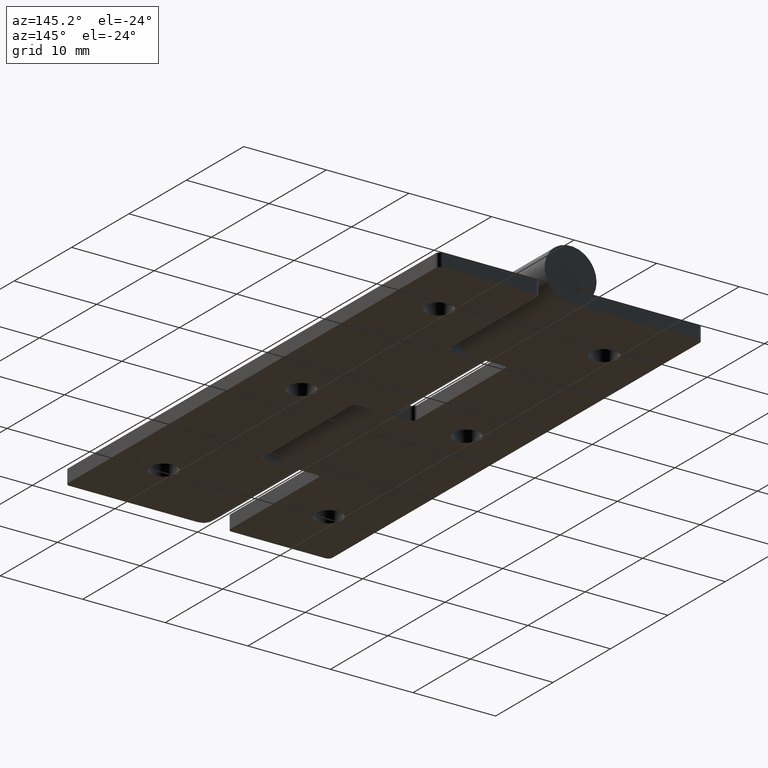
[diagram: clean part render]
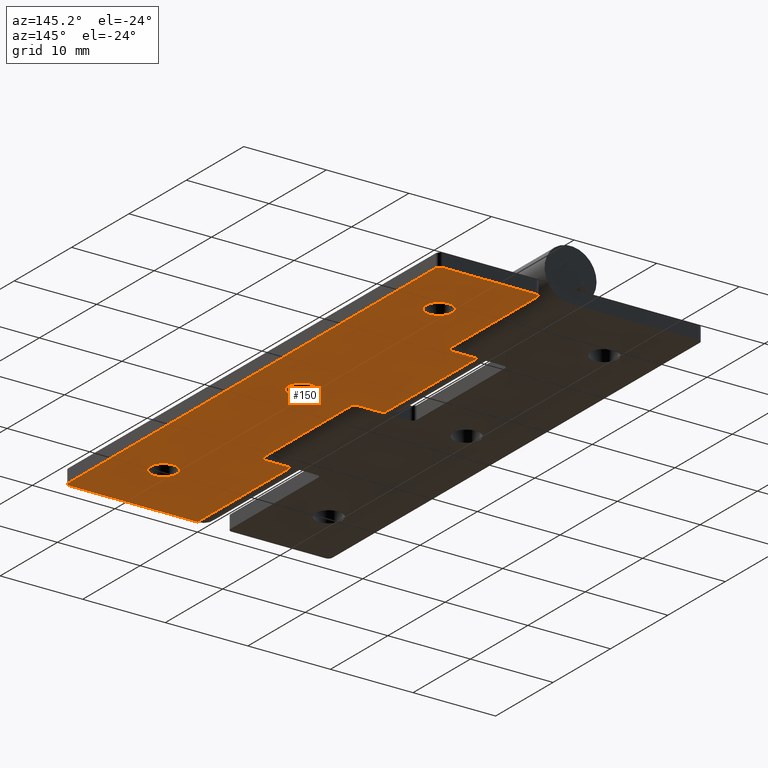
[diagram: same view with one face highlighted and labeled with its STEP entity id]
A machine part, auxiliary view. The second image highlights one B-rep face of the part: STEP entity #150.
In plain terms, the highlighted planar face has unit normal (-0, 0, 1).
Its self-contained STEP definition (entity closure, byte-faithful):
#150=ADVANCED_FACE('',(#220,#221,#222,#223),#219,.F.);
#219=PLANE('',#829);
#220=FACE_OUTER_BOUND('',#830,.T.);
#221=FACE_BOUND('',#831,.T.);
#222=FACE_BOUND('',#832,.T.);
#223=FACE_BOUND('',#833,.T.);
#826=CARTESIAN_POINT('',(-1.59999999998E+00,-6.50000000000E+00,-3.09999800001E+00));
#827=DIRECTION('',(-7.81140560233E-13,0.00000000000E+00,1.00000000000E+00));
#828=DIRECTION('',(1.00000000000E+00,0.00000000000E+00,7.81140560233E-13));
#829=AXIS2_PLACEMENT_3D('',#826,#827,#828);
#830=EDGE_LOOP('',(#1137,#1138,#1139,#1140,#1141,#1142,#1143,#1144,#1145,#1146,#1147,#1148,#1149,#1150,#1151,#1152));
#831=EDGE_LOOP('',(#1153,#1154));
#832=EDGE_LOOP('',(#1155,#1156));
#833=EDGE_LOOP('',(#1157,#1158));
#1137=ORIENTED_EDGE('',*,*,#1461,.F.);
#1138=ORIENTED_EDGE('',*,*,#1462,.T.);
#1139=ORIENTED_EDGE('',*,*,#1463,.F.);
#1140=ORIENTED_EDGE('',*,*,#1464,.F.);
#1141=ORIENTED_EDGE('',*,*,#1465,.T.);
#1142=ORIENTED_EDGE('',*,*,#1466,.F.);
#1143=ORIENTED_EDGE('',*,*,#1467,.T.);
#1144=ORIENTED_EDGE('',*,*,#1468,.F.);
#1145=ORIENTED_EDGE('',*,*,#1469,.F.);
#1146=ORIENTED_EDGE('',*,*,#1470,.F.);
#1147=ORIENTED_EDGE('',*,*,#1471,.T.);
#1148=ORIENTED_EDGE('',*,*,#1472,.F.);
#1149=ORIENTED_EDGE('',*,*,#1473,.F.);
#1150=ORIENTED_EDGE('',*,*,#1474,.F.);
#1151=ORIENTED_EDGE('',*,*,#1475,.F.);
#1152=ORIENTED_EDGE('',*,*,#1458,.T.);
#1153=ORIENTED_EDGE('',*,*,#1476,.T.);
#1154=ORIENTED_EDGE('',*,*,#1477,.T.);
#1155=ORIENTED_EDGE('',*,*,#1478,.T.);
#1156=ORIENTED_EDGE('',*,*,#1479,.T.);
#1157=ORIENTED_EDGE('',*,*,#1480,.T.);
#1158=ORIENTED_EDGE('',*,*,#1481,.T.);
#1458=EDGE_CURVE('',#1627,#1619,#1628,.T.);
#1461=EDGE_CURVE('',#1647,#1619,#1648,.T.);
#1462=EDGE_CURVE('',#1647,#1654,#1655,.T.);
#1463=EDGE_CURVE('',#1661,#1654,#1662,.T.);
#1464=EDGE_CURVE('',#1668,#1661,#1669,.T.);
#1465=EDGE_CURVE('',#1668,#1675,#1676,.T.);
#1466=EDGE_CURVE('',#1682,#1675,#1683,.T.);
#1467=EDGE_CURVE('',#1682,#1689,#1690,.T.);
#1468=EDGE_CURVE('',#1696,#1689,#1697,.T.);
#1469=EDGE_CURVE('',#1703,#1696,#1704,.T.);
#1470=EDGE_CURVE('',#1710,#1703,#1711,.T.);
#1471=EDGE_CURVE('',#1710,#1717,#1718,.T.);
#1472=EDGE_CURVE('',#1724,#1717,#1725,.T.);
#1473=EDGE_CURVE('',#1731,#1724,#1732,.T.);
#1474=EDGE_CURVE('',#1738,#1731,#1739,.T.);
#1475=EDGE_CURVE('',#1627,#1738,#1745,.T.);
#1476=EDGE_CURVE('',#1751,#1752,#1753,.T.);
#1477=EDGE_CURVE('',#1752,#1751,#1759,.T.);
#1478=EDGE_CURVE('',#1765,#1766,#1767,.T.);
#1479=EDGE_CURVE('',#1766,#1765,#1773,.T.);
#1480=EDGE_CURVE('',#1779,#1780,#1781,.T.);
#1481=EDGE_CURVE('',#1780,#1779,#1787,.T.);
#1619=VERTEX_POINT('',#2699);
#1627=VERTEX_POINT('',#2704);
#1628=LINE('',#2705,#2706);
#1647=VERTEX_POINT('',#2715);
#1648=CIRCLE('',#2719,5.00000000000E-01);
#1654=VERTEX_POINT('',#2720);
#1655=LINE('',#2721,#2722);
#1661=VERTEX_POINT('',#2724);
#1662=LINE('',#2725,#2726);
#1668=VERTEX_POINT('',#2728);
#1669=LINE('',#2729,#2730);
#1675=VERTEX_POINT('',#2732);
#1676=CIRCLE('',#2736,5.00000000000E-01);
#1682=VERTEX_POINT('',#2737);
#1683=LINE('',#2738,#2739);
#1689=VERTEX_POINT('',#2741);
#1690=CIRCLE('',#2745,5.00000000000E-01);
#1696=VERTEX_POINT('',#2746);
#1697=LINE('',#2747,#2748);
#1703=VERTEX_POINT('',#2750);
#1704=LINE('',#2751,#2752);
#1710=VERTEX_POINT('',#2754);
#1711=LINE('',#2755,#2756);
#1717=VERTEX_POINT('',#2758);
#1718=CIRCLE('',#2762,5.00000000000E-01);
#1724=VERTEX_POINT('',#2763);
#1725=LINE('',#2764,#2765);
#1731=VERTEX_POINT('',#2767);
#1732=CIRCLE('',#2771,5.00000000000E-01);
#1738=VERTEX_POINT('',#2772);
#1739=LINE('',#2773,#2774);
#1745=CIRCLE('',#2779,5.00000000000E-01);
#1751=VERTEX_POINT('',#2780);
#1752=VERTEX_POINT('',#2781);
#1753=CIRCLE('',#2785,1.60000000000E+00);
#1759=CIRCLE('',#2789,1.60000000000E+00);
#1765=VERTEX_POINT('',#2790);
#1766=VERTEX_POINT('',#2791);
#1767=CIRCLE('',#2795,1.60000000000E+00);
#1773=CIRCLE('',#2799,1.60000000000E+00);
#1779=VERTEX_POINT('',#2800);
#1780=VERTEX_POINT('',#2801);
#1781=CIRCLE('',#2805,1.60000000000E+00);
#1787=CIRCLE('',#2809,1.60000000000E+00);
#2699=CARTESIAN_POINT('',(1.59999999998E+01,5.00000000007E-01,-3.09999800001E+00));
#2704=CARTESIAN_POINT('',(1.59999999998E+01,6.45000000000E+01,-3.09999800001E+00));
#2705=CARTESIAN_POINT('',(1.59999999998E+01,6.45000000000E+01,-3.09999800000E+00));
#2706=VECTOR('',#2707,6.40000000000E+01);
#2707=DIRECTION('',(0.00000000000E+00,-1.00000000000E+00,0.00000000000E+00));
#2715=CARTESIAN_POINT('',(1.54999999998E+01,6.70752342558E-12,-3.09999800001E+00));
#2716=CARTESIAN_POINT('',(1.54999999998E+01,5.00000000007E-01,-3.09999800001E+00));
#2717=DIRECTION('',(0.00000000000E+00,0.00000000000E+00,1.00000000000E+00));
#2718=DIRECTION('',(1.00000000000E+00,-0.00000000000E+00,-0.00000000000E+00));
#2719=AXIS2_PLACEMENT_3D('',#2716,#2717,#2718);
#2720=CARTESIAN_POINT('',(2.46025422257E-12,0.00000000000E+00,-3.09999800001E+00));
#2721=CARTESIAN_POINT('',(1.54999999998E+01,0.00000000000E+00,-3.09999800000E+00));
#2722=VECTOR('',#2723,1.54999999998E+01);
#2723=DIRECTION('',(-1.00000000000E+00,0.00000000000E+00,-7.81138594678E-13));
#2724=CARTESIAN_POINT('',(0.00000000000E+00,1.62500000000E+01,-3.09999800001E+00));
#2725=CARTESIAN_POINT('',(2.46025422257E-12,1.62500000000E+01,-3.09999800001E+00));
#2726=VECTOR('',#2727,1.62500000000E+01);
#2727=DIRECTION('',(0.00000000000E+00,-1.00000000000E+00,0.00000000000E+00));
#2728=CARTESIAN_POINT('',(3.14999999980E+00,1.62500000000E+01,-3.09999800001E+00));
#2729=CARTESIAN_POINT('',(3.14999999980E+00,1.62500000000E+01,-3.09999800001E+00));
#2730=VECTOR('',#2731,3.14999999980E+00);
#2731=DIRECTION('',(-1.00000000000E+00,-7.75957781325E-13,0.00000000000E+00));
#2732=CARTESIAN_POINT('',(3.64999999980E+00,1.67500000000E+01,-3.09999800001E+00));
#2733=CARTESIAN_POINT('',(3.14999999980E+00,1.67500000000E+01,-3.09999800001E+00));
#2734=DIRECTION('',(0.00000000000E+00,0.00000000000E+00,1.00000000000E+00));
#2735=DIRECTION('',(1.00000000000E+00,-0.00000000000E+00,-0.00000000000E+00));
#2736=AXIS2_PLACEMENT_3D('',#2733,#2734,#2735);
#2737=CARTESIAN_POINT('',(3.64999999980E+00,3.20000000000E+01,-3.09999800001E+00));
#2738=CARTESIAN_POINT('',(3.64999999980E+00,3.20000000000E+01,-3.09999800001E+00));
#2739=VECTOR('',#2740,1.52500000000E+01);
#2740=DIRECTION('',(0.00000000000E+00,-1.00000000000E+00,0.00000000000E+00));
#2741=CARTESIAN_POINT('',(3.14999999980E+00,3.25000000000E+01,-3.09999800001E+00));
#2742=CARTESIAN_POINT('',(3.14999999980E+00,3.20000000000E+01,-3.09999800001E+00));
#2743=DIRECTION('',(0.00000000000E+00,0.00000000000E+00,1.00000000000E+00));
#2744=DIRECTION('',(1.00000000000E+00,-0.00000000000E+00,-0.00000000000E+00));
#2745=AXIS2_PLACEMENT_3D('',#2742,#2743,#2744);
#2746=CARTESIAN_POINT('',(0.00000000000E+00,3.25000000000E+01,-3.09999800001E+00));
#2747=CARTESIAN_POINT('',(0.00000000000E+00,3.25000000000E+01,-3.09999800001E+00));
#2748=VECTOR('',#2749,3.14999999980E+00);
#2749=DIRECTION('',(1.00000000000E+00,-1.29702245425E-12,0.00000000000E+00));
#2750=CARTESIAN_POINT('',(0.00000000000E+00,4.87500000000E+01,-3.09999800001E+00));
#2751=CARTESIAN_POINT('',(2.46025422257E-12,4.87500000000E+01,-3.09999800001E+00));
#2752=VECTOR('',#2753,1.62500000000E+01);
#2753=DIRECTION('',(0.00000000000E+00,-1.00000000000E+00,0.00000000000E+00));
#2754=CARTESIAN_POINT('',(3.14999999980E+00,4.87500000000E+01,-3.09999800001E+00));
#2755=CARTESIAN_POINT('',(3.14999999980E+00,4.87500000000E+01,-3.09999800001E+00));
#2756=VECTOR('',#2757,3.14999999980E+00);
#2757=DIRECTION('',(-1.00000000000E+00,-2.86021647302E-12,0.00000000000E+00));
#2758=CARTESIAN_POINT('',(3.64999999980E+00,4.92500000000E+01,-3.09999800001E+00));
#2759=CARTESIAN_POINT('',(3.14999999980E+00,4.92500000000E+01,-3.09999800001E+00));
#2760=DIRECTION('',(0.00000000000E+00,0.00000000000E+00,1.00000000000E+00));
#2761=DIRECTION('',(1.00000000000E+00,-0.00000000000E+00,-0.00000000000E+00));
#2762=AXIS2_PLACEMENT_3D('',#2759,#2760,#2761);
#2763=CARTESIAN_POINT('',(3.64999999980E+00,6.45000000000E+01,-3.09999800001E+00));
#2764=CARTESIAN_POINT('',(3.64999999980E+00,6.45000000000E+01,-3.09999800001E+00));
#2765=VECTOR('',#2766,1.52500000000E+01);
#2766=DIRECTION('',(0.00000000000E+00,-1.00000000000E+00,0.00000000000E+00));
#2767=CARTESIAN_POINT('',(4.14999999980E+00,6.50000000000E+01,-3.09999800001E+00));
#2768=CARTESIAN_POINT('',(4.14999999980E+00,6.45000000000E+01,-3.09999800001E+00));
#2769=DIRECTION('',(0.00000000000E+00,0.00000000000E+00,1.00000000000E+00));
#2770=DIRECTION('',(1.00000000000E+00,-0.00000000000E+00,-0.00000000000E+00));
#2771=AXIS2_PLACEMENT_3D('',#2768,#2769,#2770);
#2772=CARTESIAN_POINT('',(1.54999999998E+01,6.50000000000E+01,-3.09999800000E+00));
#2773=CARTESIAN_POINT('',(1.54999999998E+01,6.50000000000E+01,-3.09999800000E+00));
#2774=VECTOR('',#2775,1.13500000000E+01);
#2775=DIRECTION('',(-1.00000000000E+00,0.00000000000E+00,-7.81127487705E-13));
#2776=CARTESIAN_POINT('',(1.54999999998E+01,6.45000000000E+01,-3.09999800001E+00));
#2777=DIRECTION('',(0.00000000000E+00,0.00000000000E+00,1.00000000000E+00));
#2778=DIRECTION('',(1.00000000000E+00,-0.00000000000E+00,-0.00000000000E+00));
#2779=AXIS2_PLACEMENT_3D('',#2776,#2777,#2778);
#2780=CARTESIAN_POINT('',(1.16000000000E+01,5.65000000000E+01,-3.09999800001E+00));
#2781=CARTESIAN_POINT('',(8.39999999995E+00,5.65000000000E+01,-3.09999800001E+00));
#2782=CARTESIAN_POINT('',(9.99999999995E+00,5.65000000000E+01,-3.09999800001E+00));
#2783=DIRECTION('',(-7.81140560233E-13,-1.12103877146E-44,1.00000000000E+00));
#2784=DIRECTION('',(1.00000000000E+00,-1.22460635382E-16,7.81140560233E-13));
#2785=AXIS2_PLACEMENT_3D('',#2782,#2783,#2784);
#2786=CARTESIAN_POINT('',(9.99999999995E+00,5.65000000000E+01,-3.09999800001E+00));
#2787=DIRECTION('',(-7.81140560233E-13,-1.12103877146E-44,1.00000000000E+00));
#2788=DIRECTION('',(1.00000000000E+00,-1.22460635382E-16,7.81140560233E-13));
#2789=AXIS2_PLACEMENT_3D('',#2786,#2787,#2788);
#2790=CARTESIAN_POINT('',(1.16000000000E+01,3.25000000000E+01,-3.09999800001E+00));
#2791=CARTESIAN_POINT('',(8.39999999997E+00,3.25000000000E+01,-3.09999800001E+00));
#2792=CARTESIAN_POINT('',(9.99999999997E+00,3.25000000000E+01,-3.09999800001E+00));
#2793=DIRECTION('',(-7.81140560233E-13,-1.12103877146E-44,1.00000000000E+00));
#2794=DIRECTION('',(1.00000000000E+00,-1.22460635382E-16,7.81140560233E-13));
#2795=AXIS2_PLACEMENT_3D('',#2792,#2793,#2794);
#2796=CARTESIAN_POINT('',(9.99999999997E+00,3.25000000000E+01,-3.09999800001E+00));
#2797=DIRECTION('',(-7.81140560233E-13,-1.12103877146E-44,1.00000000000E+00));
#2798=DIRECTION('',(1.00000000000E+00,-1.22460635382E-16,7.81140560233E-13));
#2799=AXIS2_PLACEMENT_3D('',#2796,#2797,#2798);
#2800=CARTESIAN_POINT('',(1.16000000000E+01,8.50000000000E+00,-3.09999800001E+00));
#2801=CARTESIAN_POINT('',(8.39999999999E+00,8.50000000000E+00,-3.09999800001E+00));
#2802=CARTESIAN_POINT('',(9.99999999999E+00,8.50000000000E+00,-3.09999800001E+00));
#2803=DIRECTION('',(-7.81140560233E-13,-1.12103877146E-44,1.00000000000E+00));
#2804=DIRECTION('',(1.00000000000E+00,-1.22460635382E-16,7.81140560233E-13));
#2805=AXIS2_PLACEMENT_3D('',#2802,#2803,#2804);
#2806=CARTESIAN_POINT('',(9.99999999999E+00,8.50000000000E+00,-3.09999800001E+00));
#2807=DIRECTION('',(-7.81140560233E-13,-1.12103877146E-44,1.00000000000E+00));
#2808=DIRECTION('',(1.00000000000E+00,-1.22460635382E-16,7.81140560233E-13));
#2809=AXIS2_PLACEMENT_3D('',#2806,#2807,#2808);